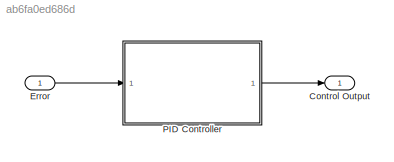
MODEL slx_ab6fa0ed686d
KIND model
CONFIG AbsTol = auto
CONFIG EnableMultiTasking = off
CONFIG FixedStep = auto
CONFIG MaxStep = auto
CONFIG MinStep = auto
CONFIG RelTol = 1e-3
CONFIG SampleTimeConstraint = Unconstrained
CONFIG Solver = VariableStepAuto
CONFIG SolverName = VariableStepAuto
CONFIG StartTime = 0.0
CONFIG StopTime = 10.0
BLOCK [Outport] Control Output
  IconDisplay = Port number
BLOCK [Inport] Error
  IconDisplay = Port number
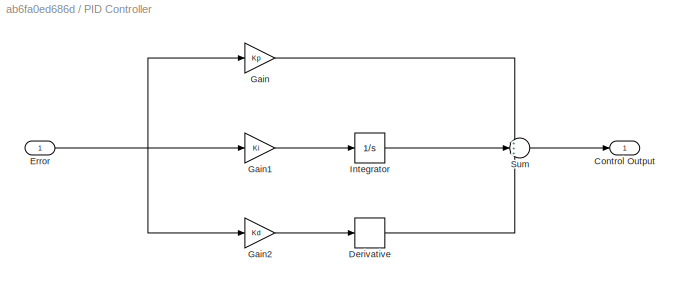
BLOCK [SubSystem] PID Controller
  Ports = [1, 1]
  RequestExecContextInheritance = off
  Variant = off
BLOCK [Outport] PID Controller/Control Output
  IconDisplay = Port number
BLOCK [Derivative] PID Controller/Derivative
BLOCK [Inport] PID Controller/Error
  IconDisplay = Port number
BLOCK [Gain] PID Controller/Gain
  Gain = Kp
  OutDataTypeStr = Inherit: Inherit via internal rule
  ParamDataTypeStr = Inherit: Inherit via internal rule
  SaturateOnIntegerOverflow = off
BLOCK [Gain] PID Controller/Gain1
  Gain = Ki
  OutDataTypeStr = Inherit: Inherit via internal rule
  ParamDataTypeStr = Inherit: Inherit via internal rule
  SaturateOnIntegerOverflow = off
BLOCK [Gain] PID Controller/Gain2
  Gain = Kd
  OutDataTypeStr = Inherit: Inherit via internal rule
  ParamDataTypeStr = Inherit: Inherit via internal rule
  SaturateOnIntegerOverflow = off
BLOCK [Integrator] PID Controller/Integrator
  Ports = [1, 1]
BLOCK [Sum] PID Controller/Sum
  IconShape = round
  InputSameDT = off
  Inputs = +++
  OutDataTypeStr = Inherit: Inherit via internal rule
  Ports = [3, 1]
  SaturateOnIntegerOverflow = off
LINE Error:1 -> PID Controller:1
LINE PID Controller/Derivative:1 -> PID Controller/Sum:3
NET PID Controller/Error:1 -> PID Controller/Gain1:1, PID Controller/Gain2:1, PID Controller/Gain:1
LINE PID Controller/Gain1:1 -> PID Controller/Integrator:1
LINE PID Controller/Gain2:1 -> PID Controller/Derivative:1
LINE PID Controller/Gain:1 -> PID Controller/Sum:1
LINE PID Controller/Integrator:1 -> PID Controller/Sum:2
LINE PID Controller/Sum:1 -> PID Controller/Control Output:1
LINE PID Controller:1 -> Control Output:1
note: NET lines group one-source signal fan-out (src -> all destinations, sorted); 1:1 wires keep LINE
